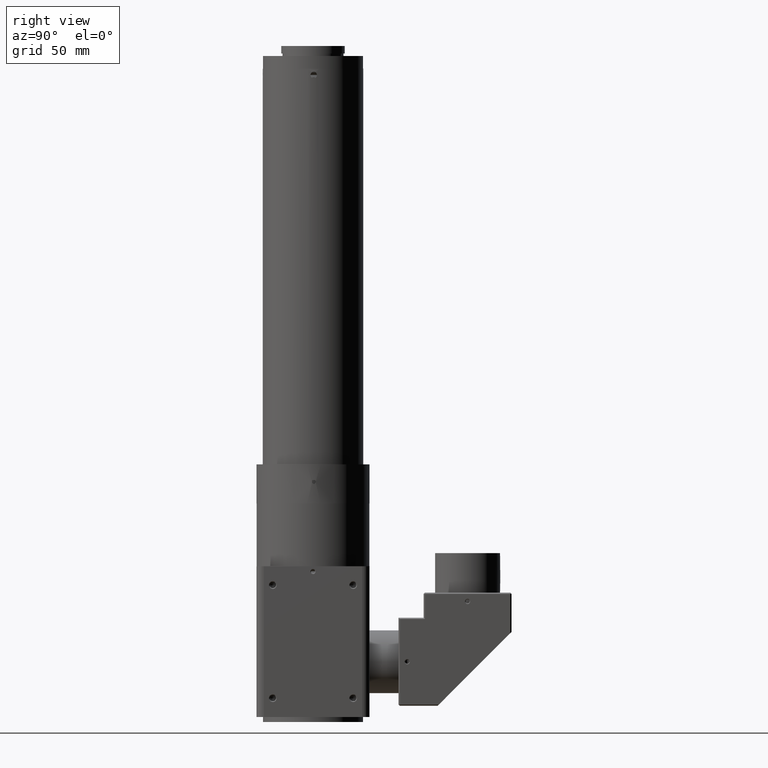
[diagram: clean part render]
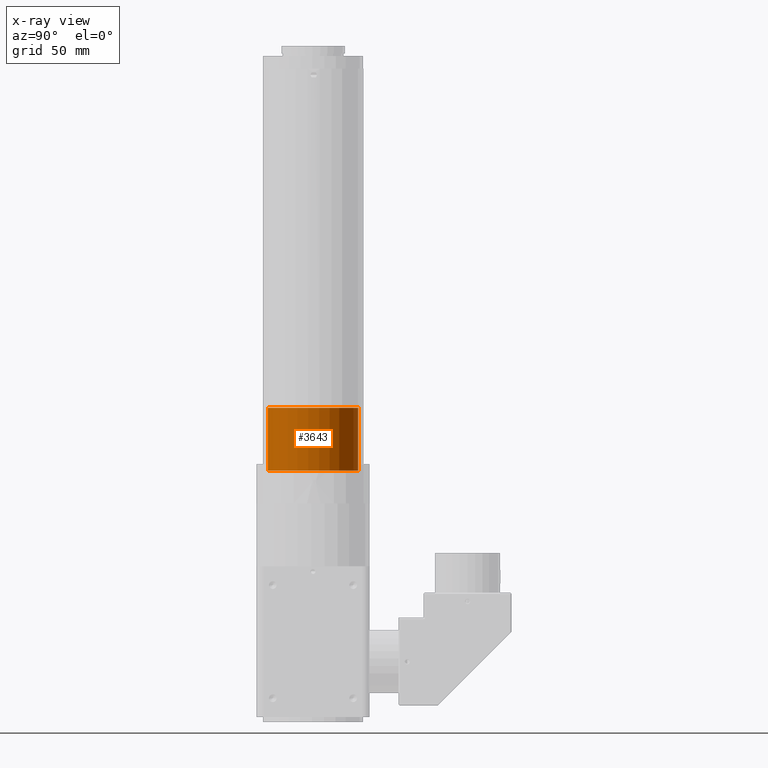
[diagram: x-ray — body ghosted, one internal face saturated and labeled with its STEP entity id]
A machine part, right view, then the same camera in x-ray: the body is ghosted and one INTERNAL B-rep face — a face not visible from any outside direction — is saturated and labeled: STEP entity #3643.
In plain terms, the highlighted cylindrical surface (bore or boss wall) has radius 18 mm, axis along (-0, -0, -1).
Its self-contained STEP definition (entity closure, byte-faithful):
#166 = CIRCLE ( 'NONE', #4228, 17.99999999999998224 ) ;
#404 = DIRECTION ( 'NONE',  ( -0.01510961754153024132, 0.9998858432129882345, 0.000000000000000000 ) ) ;
#1444 = AXIS2_PLACEMENT_3D ( 'NONE', #7414, #10786, #404 ) ;
#1574 = CARTESIAN_POINT ( 'NONE',  ( -0.2719731157475381855, 17.99794517783377046, 98.00000000000002842 ) ) ;
#2564 = CIRCLE ( 'NONE', #1444, 17.99999999999998224 ) ;
#2762 = EDGE_CURVE ( 'NONE', #9525, #9525, #166, .T. ) ;
#3207 = ORIENTED_EDGE ( 'NONE', *, *, #9191, .T. ) ;
#3643 = ADVANCED_FACE ( 'NONE', ( #7767, #7826 ), #5161, .F. ) ;
#4176 = DIRECTION ( 'NONE',  ( -0.01510961754153024132, 0.9998858432129882345, 0.000000000000000000 ) ) ;
#4228 = AXIS2_PLACEMENT_3D ( 'NONE', #10006, #9130, #6704 ) ;
#5161 = CYLINDRICAL_SURFACE ( 'NONE', #9407, 17.99999999999998224 ) ;
#5853 = EDGE_LOOP ( 'NONE', ( #3207 ) ) ;
#6009 = ORIENTED_EDGE ( 'NONE', *, *, #2762, .F. ) ;
#6704 = DIRECTION ( 'NONE',  ( -0.01510961754153024132, 0.9998858432129882345, 0.000000000000000000 ) ) ;
#7082 = CARTESIAN_POINT ( 'NONE',  ( 6.193463811866609349E-15, 1.123936055439440684E-15, 174.3611247653697660 ) ) ;
#7414 = CARTESIAN_POINT ( 'NONE',  ( 6.015269114100461697E-15, 1.123936055439438317E-15, 123.0000000000000284 ) ) ;
#7674 = CARTESIAN_POINT ( 'NONE',  ( -0.2719731157475380745, 17.99794517783377046, 123.0000000000000284 ) ) ;
#7767 = FACE_OUTER_BOUND ( 'NONE', #5853, .T. ) ;
#7826 = FACE_OUTER_BOUND ( 'NONE', #10675, .T. ) ;
#8165 = VERTEX_POINT ( 'NONE', #7674 ) ;
#9130 = DIRECTION ( 'NONE',  ( 3.469446951954128797E-18, 4.778564104406944837E-32, 1.000000000000000000 ) ) ;
#9191 = EDGE_CURVE ( 'NONE', #8165, #8165, #2564, .T. ) ;
#9407 = AXIS2_PLACEMENT_3D ( 'NONE', #7082, #11308, #4176 ) ;
#9525 = VERTEX_POINT ( 'NONE', #1574 ) ;
#10006 = CARTESIAN_POINT ( 'NONE',  ( 5.928532940301608720E-15, 1.123936055439437134E-15, 98.00000000000002842 ) ) ;
#10675 = EDGE_LOOP ( 'NONE', ( #6009 ) ) ;
#10786 = DIRECTION ( 'NONE',  ( 3.469446951954128797E-18, 4.778564104406944837E-32, 1.000000000000000000 ) ) ;
#11308 = DIRECTION ( 'NONE',  ( -3.469446951954128797E-18, -4.778564104406944837E-32, -1.000000000000000000 ) ) ;